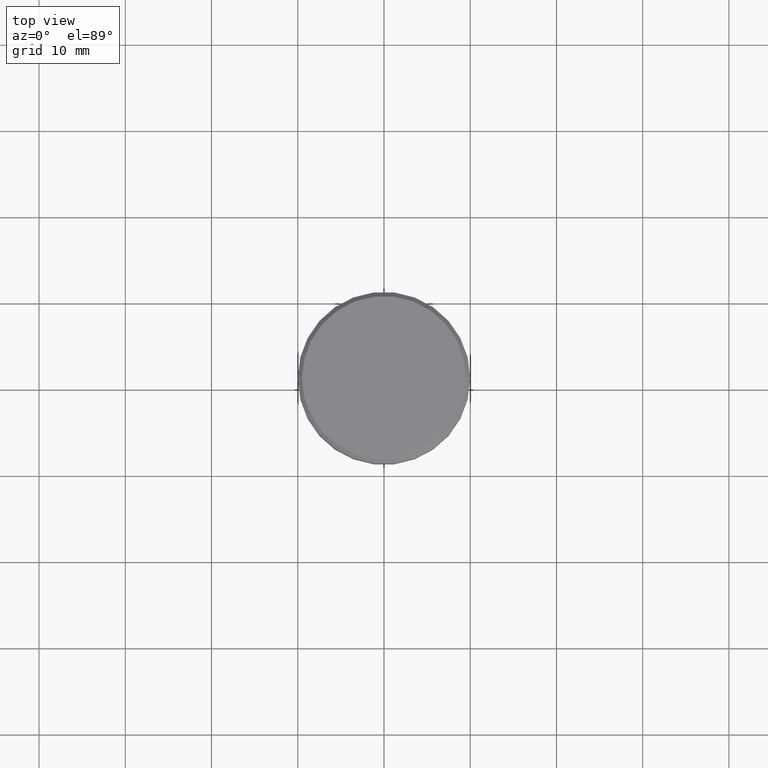
[diagram: clean part render]
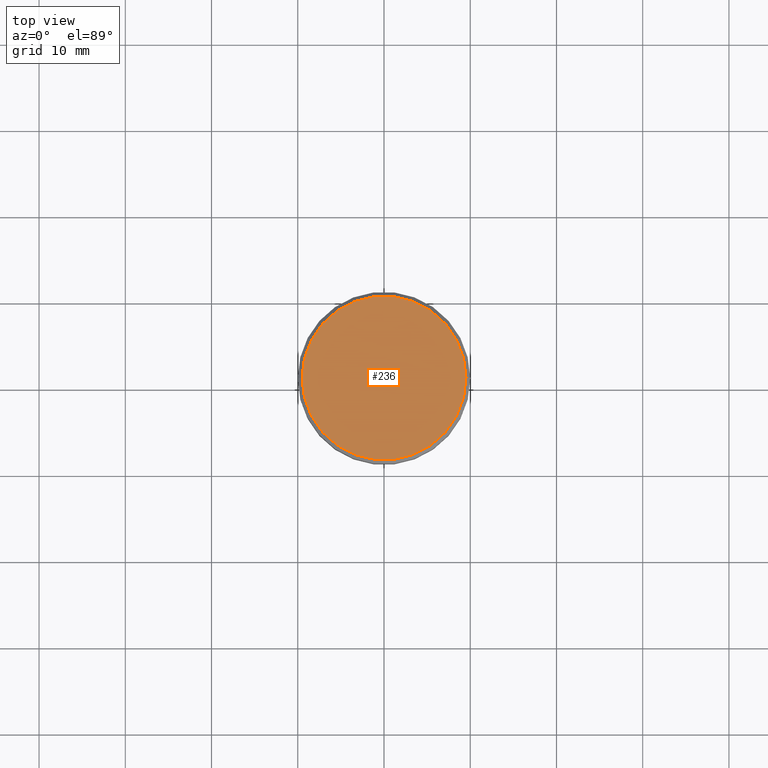
[diagram: same view with one face highlighted and labeled with its STEP entity id]
A machine part, top view. The second image highlights one B-rep face of the part: STEP entity #236.
In plain terms, the highlighted planar face has unit normal (0, -0, 1).
Its self-contained STEP definition (entity closure, byte-faithful):
#109 = AXIS2_PLACEMENT_3D ( 'NONE', #208, #350, #685 ) ;
#139 = DIRECTION ( 'NONE',  ( -0.000000000000000000, -0.000000000000000000, 1.000000000000000000 ) ) ;
#165 = VERTEX_POINT ( 'NONE', #1041 ) ;
#208 = CARTESIAN_POINT ( 'NONE',  ( 0.000000000000000000, 0.000000000000000000, 0.000000000000000000 ) ) ;
#236 = ADVANCED_FACE ( 'NONE', ( #632 ), #324, .T. ) ;
#324 = PLANE ( 'NONE',  #622 ) ;
#350 = DIRECTION ( 'NONE',  ( -0.000000000000000000, -0.000000000000000000, 1.000000000000000000 ) ) ;
#423 = ORIENTED_EDGE ( 'NONE', *, *, #705, .T. ) ;
#458 = ORIENTED_EDGE ( 'NONE', *, *, #1021, .T. ) ;
#478 = DIRECTION ( 'NONE',  ( 1.000000000000000000, 0.000000000000000000, 0.000000000000000000 ) ) ;
#508 = VERTEX_POINT ( 'NONE', #788 ) ;
#571 = CIRCLE ( 'NONE', #109, 9.499999999999994671 ) ;
#607 = CIRCLE ( 'NONE', #812, 9.499999999999994671 ) ;
#622 = AXIS2_PLACEMENT_3D ( 'NONE', #1054, #818, #739 ) ;
#632 = FACE_OUTER_BOUND ( 'NONE', #751, .T. ) ;
#685 = DIRECTION ( 'NONE',  ( 1.000000000000000000, 0.000000000000000000, 0.000000000000000000 ) ) ;
#705 = EDGE_CURVE ( 'NONE', #165, #508, #607, .T. ) ;
#739 = DIRECTION ( 'NONE',  ( 1.000000000000000000, 0.000000000000000000, 0.000000000000000000 ) ) ;
#751 = EDGE_LOOP ( 'NONE', ( #423, #458 ) ) ;
#788 = CARTESIAN_POINT ( 'NONE',  ( 9.499999999999994671, 1.194030629168669075E-15, 0.000000000000000000 ) ) ;
#812 = AXIS2_PLACEMENT_3D ( 'NONE', #1049, #139, #478 ) ;
#818 = DIRECTION ( 'NONE',  ( 0.000000000000000000, -0.000000000000000000, 1.000000000000000000 ) ) ;
#1021 = EDGE_CURVE ( 'NONE', #508, #165, #571, .T. ) ;
#1041 = CARTESIAN_POINT ( 'NONE',  ( -9.499999999999994671, 0.000000000000000000, 0.000000000000000000 ) ) ;
#1049 = CARTESIAN_POINT ( 'NONE',  ( 0.000000000000000000, 0.000000000000000000, 0.000000000000000000 ) ) ;
#1054 = CARTESIAN_POINT ( 'NONE',  ( 0.000000000000000000, 0.000000000000000000, 0.000000000000000000 ) ) ;